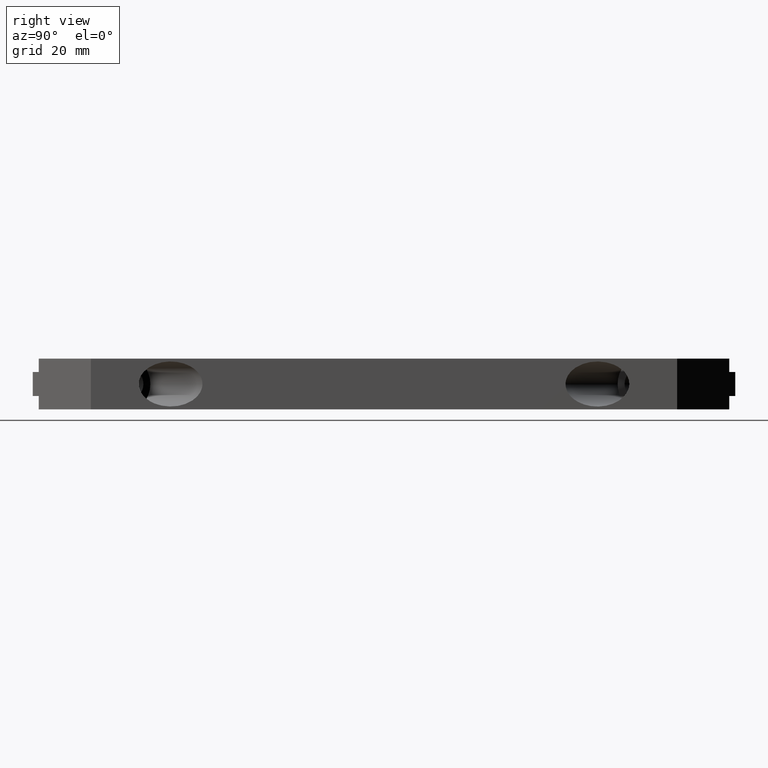
[diagram: clean part render]
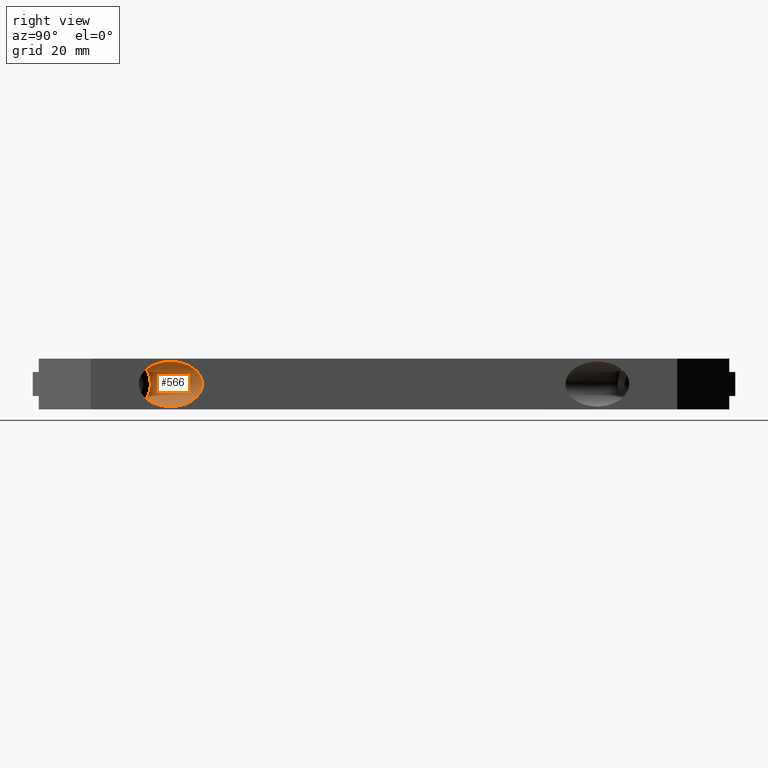
[diagram: same view with one face highlighted and labeled with its STEP entity id]
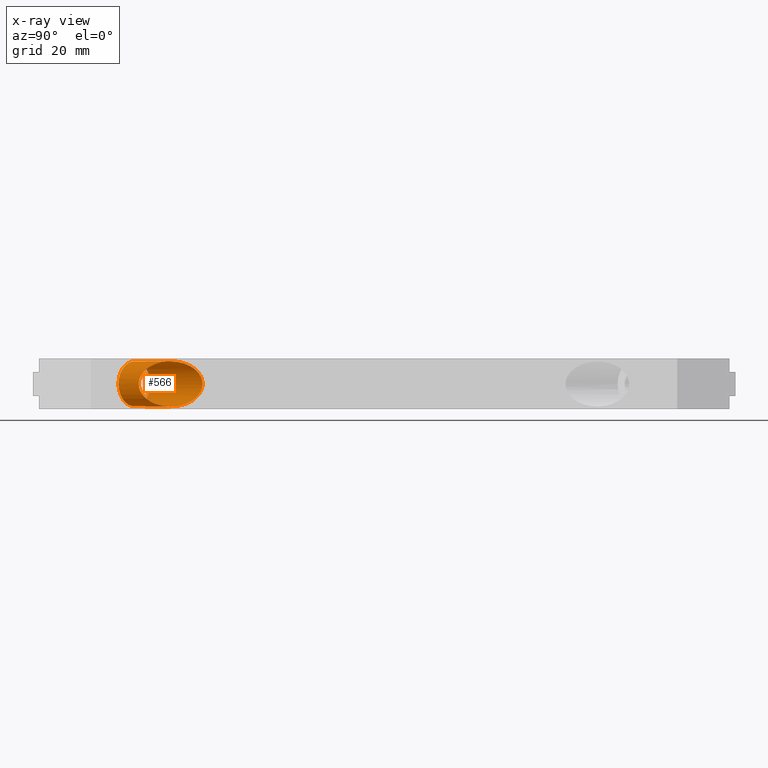
[diagram: x-ray of the same camera — body ghosted, the highlighted face saturated]
A machine part, right view. The second image highlights one B-rep face of the part: STEP entity #566.
The next image is the same camera in x-ray: the body ghosted, the highlighted face saturated — about 0% of this face is hidden behind the body in this view.
In plain terms, the highlighted cylindrical surface (bore or boss wall) has radius 8 mm, axis along (0.7071, 0.7071, 0).
Its self-contained STEP definition (entity closure, byte-faithful):
#17=CYLINDRICAL_SURFACE('',#604,8.00000037595084);
#23=CIRCLE('',#605,8.00000037595082);
#32=FACE_BOUND('',#102,.T.);
#36=ELLIPSE('',#573,11.3137090306595,8.00000037595084);
#64=FACE_OUTER_BOUND('',#101,.T.);
#101=EDGE_LOOP('',(#507));
#102=EDGE_LOOP('',(#508));
#244=VERTEX_POINT('',#765);
#289=VERTEX_POINT('',#904);
#296=EDGE_CURVE('',#244,#244,#36,.T.);
#363=EDGE_CURVE('',#289,#289,#23,.T.);
#507=ORIENTED_EDGE('',*,*,#296,.T.);
#508=ORIENTED_EDGE('',*,*,#363,.F.);
#566=ADVANCED_FACE('',(#64,#32),#17,.F.);
#573=AXIS2_PLACEMENT_3D('',#766,#619,#620);
#604=AXIS2_PLACEMENT_3D('',#903,#743,#744);
#605=AXIS2_PLACEMENT_3D('',#905,#745,#746);
#619=DIRECTION('center_axis',(1.,0.,0.));
#620=DIRECTION('ref_axis',(0.,-1.,0.));
#743=DIRECTION('center_axis',(0.707106781186548,0.707106781186548,0.));
#744=DIRECTION('ref_axis',(-0.707106781186548,0.707106781186548,0.));
#745=DIRECTION('center_axis',(0.707106781186545,0.70710678118655,0.));
#746=DIRECTION('ref_axis',(-0.70710678118655,0.707106781186545,0.));
#765=CARTESIAN_POINT('',(69.9999999997199,-87.0294380610614,9.));
#766=CARTESIAN_POINT('Origin',(69.9999999997199,-75.7157290304018,9.));
#903=CARTESIAN_POINT('Origin',(90.6455328494721,-55.0701961806496,9.));
#904=CARTESIAN_POINT('',(62.8137090304534,-94.2157290303278,9.));
#905=CARTESIAN_POINT('Origin',(57.1568545151237,-88.5588745149981,9.));